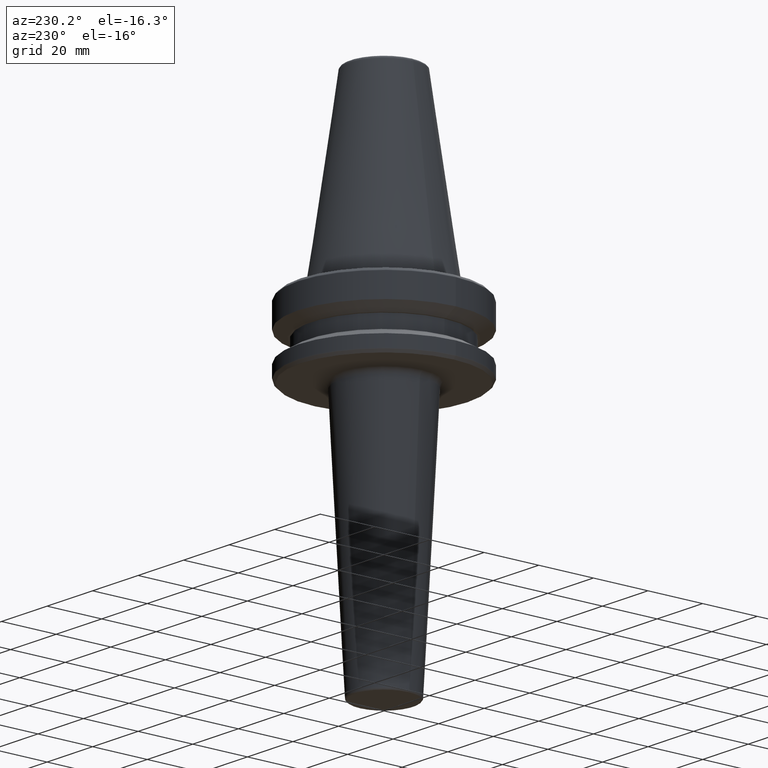
[diagram: clean part render]
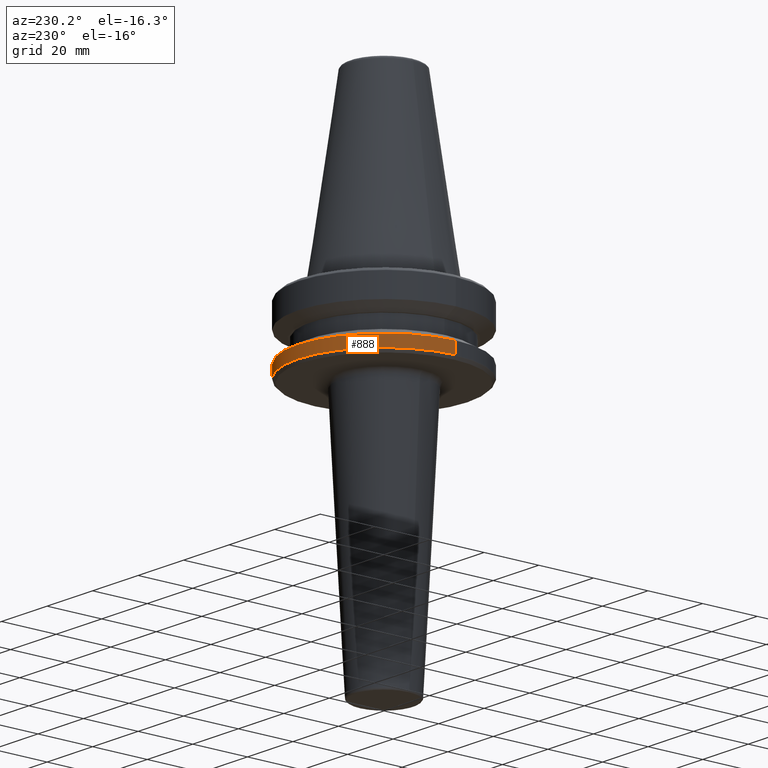
[diagram: same view with one face highlighted and labeled with its STEP entity id]
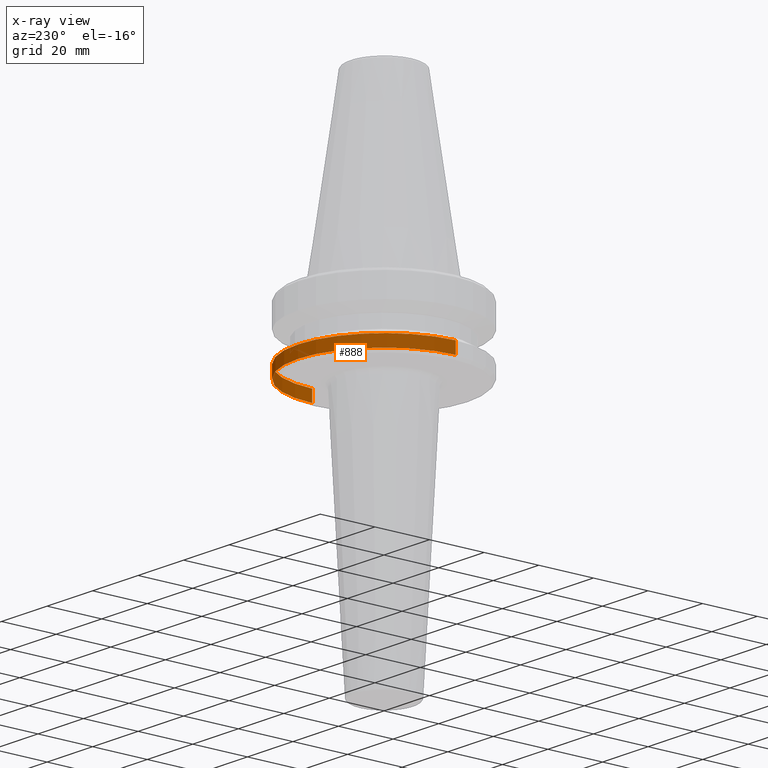
[diagram: x-ray of the same camera — body ghosted, the highlighted face saturated]
A machine part, auxiliary view. The second image highlights one B-rep face of the part: STEP entity #888.
The next image is the same camera in x-ray: the body ghosted, the highlighted face saturated — about 0% of this face is hidden behind the body in this view.
In plain terms, the highlighted cylindrical surface (partial cylindrical patch) has radius 31.5 mm, axis along (-0, -0, -1).
Its self-contained STEP definition (entity closure, byte-faithful):
#70 = DIRECTION ( 'NONE',  ( -0.0000000000000000000, -0.0000000000000000000, -1.000000000000000000 ) ) ;
#117 = EDGE_CURVE ( 'NONE', #972, #757, #426, .T. ) ;
#120 = DIRECTION ( 'NONE',  ( -0.0000000000000000000, -0.0000000000000000000, -1.000000000000000000 ) ) ;
#146 = EDGE_CURVE ( 'NONE', #696, #237, #342, .T. ) ;
#161 = CARTESIAN_POINT ( 'NONE',  ( 31.50000000000000000, 3.857637417314162700E-015, 0.0000000000000000000 ) ) ;
#170 = CARTESIAN_POINT ( 'NONE',  ( 0.0000000000000000000, 0.0000000000000000000, -21.59985333118215700 ) ) ;
#204 = CARTESIAN_POINT ( 'NONE',  ( -31.50000000000000000, 0.0000000000000000000, -25.83431457505076200 ) ) ;
#234 = CIRCLE ( 'NONE', #830, 31.50000000000000700 ) ;
#237 = VERTEX_POINT ( 'NONE', #204 ) ;
#246 = CARTESIAN_POINT ( 'NONE',  ( -31.50000000000000700, 0.0000000000000000000, -21.59985333118215700 ) ) ;
#299 = EDGE_CURVE ( 'NONE', #696, #972, #234, .T. ) ;
#338 = VECTOR ( 'NONE', #70, 1000.000000000000000 ) ;
#342 = LINE ( 'NONE', #706, #357 ) ;
#357 = VECTOR ( 'NONE', #120, 1000.000000000000000 ) ;
#383 = EDGE_CURVE ( 'NONE', #237, #757, #936, .T. ) ;
#426 = LINE ( 'NONE', #161, #338 ) ;
#443 = ORIENTED_EDGE ( 'NONE', *, *, #117, .T. ) ;
#489 = DIRECTION ( 'NONE',  ( -0.0000000000000000000, -0.0000000000000000000, -1.000000000000000000 ) ) ;
#529 = CARTESIAN_POINT ( 'NONE',  ( 31.50000000000000700, 3.857637417314163500E-015, -21.59985333118215700 ) ) ;
#531 = ORIENTED_EDGE ( 'NONE', *, *, #299, .T. ) ;
#553 = DIRECTION ( 'NONE',  ( -1.000000000000000000, 0.0000000000000000000, 0.0000000000000000000 ) ) ;
#580 = ORIENTED_EDGE ( 'NONE', *, *, #146, .F. ) ;
#650 = CARTESIAN_POINT ( 'NONE',  ( 31.50000000000000000, 3.857637417314161900E-015, -25.83431457505076200 ) ) ;
#696 = VERTEX_POINT ( 'NONE', #246 ) ;
#706 = CARTESIAN_POINT ( 'NONE',  ( -31.50000000000000000, 0.0000000000000000000, 0.0000000000000000000 ) ) ;
#726 = CARTESIAN_POINT ( 'NONE',  ( 0.0000000000000000000, 0.0000000000000000000, 0.0000000000000000000 ) ) ;
#757 = VERTEX_POINT ( 'NONE', #650 ) ;
#762 = AXIS2_PLACEMENT_3D ( 'NONE', #726, #489, #1131 ) ;
#777 = FACE_OUTER_BOUND ( 'NONE', #1134, .T. ) ;
#830 = AXIS2_PLACEMENT_3D ( 'NONE', #170, #866, #553 ) ;
#866 = DIRECTION ( 'NONE',  ( -0.0000000000000000000, -0.0000000000000000000, -1.000000000000000000 ) ) ;
#883 = CYLINDRICAL_SURFACE ( 'NONE', #762, 31.50000000000000000 ) ;
#888 = ADVANCED_FACE ( 'NONE', ( #777 ), #883, .T. ) ;
#908 = ORIENTED_EDGE ( 'NONE', *, *, #383, .F. ) ;
#936 = CIRCLE ( 'NONE', #1125, 31.50000000000000000 ) ;
#972 = VERTEX_POINT ( 'NONE', #529 ) ;
#1036 = DIRECTION ( 'NONE',  ( -1.000000000000000000, 0.0000000000000000000, 0.0000000000000000000 ) ) ;
#1125 = AXIS2_PLACEMENT_3D ( 'NONE', #1205, #1127, #1036 ) ;
#1127 = DIRECTION ( 'NONE',  ( -0.0000000000000000000, -0.0000000000000000000, -1.000000000000000000 ) ) ;
#1131 = DIRECTION ( 'NONE',  ( -1.000000000000000000, 0.0000000000000000000, 0.0000000000000000000 ) ) ;
#1134 = EDGE_LOOP ( 'NONE', ( #531, #443, #908, #580 ) ) ;
#1205 = CARTESIAN_POINT ( 'NONE',  ( 0.0000000000000000000, 0.0000000000000000000, -25.83431457505076200 ) ) ;